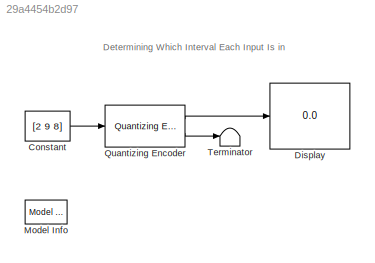
MODEL slx_29a4454b2d97
KIND model
BLOCK [Constant] Constant
  Value = [2 9 8]
BLOCK [Display] Display
  Decimation = 1
  Ports = [1]
BLOCK [Reference] Model Info  REF=simulink/Model-Wide
Utilities/Model Info
  BlockCM = none
  DisplayStringWithTags = Info
  Frame = on
  HorizontalTextAlignment = Center
  InitialBlockCM = None
  LeftAlignmentValue = 0.5
  MaskDisplayString = Info
  Ports = []
  SourceBlock = simulink/Model-Wide\nUtilities/Model Info
  SourceBlockDiagram = doc_scalar_quant_3
  SourceType = CMBlock
  TagMaxNumber = 20
BLOCK [Reference] Quantizing Encoder  REF=commsrccod2/Quantizing
Encoder
  Ports = [1, 2]
  SourceBlock = commsrccod2/Quantizing\nEncoder
  SourceType = Quantizing Encoder
  codebook = ones(1,8)
  idxDType = double
  partition = [3 4 5 6 7 8 9]
BLOCK [Terminator] Terminator
ANNOTATION (root): Determining Which Interval Each Input Is in
LINE Constant:1 -> Quantizing Encoder:1
LINE Quantizing Encoder:1 -> Display:1
LINE Quantizing Encoder:2 -> Terminator:1
